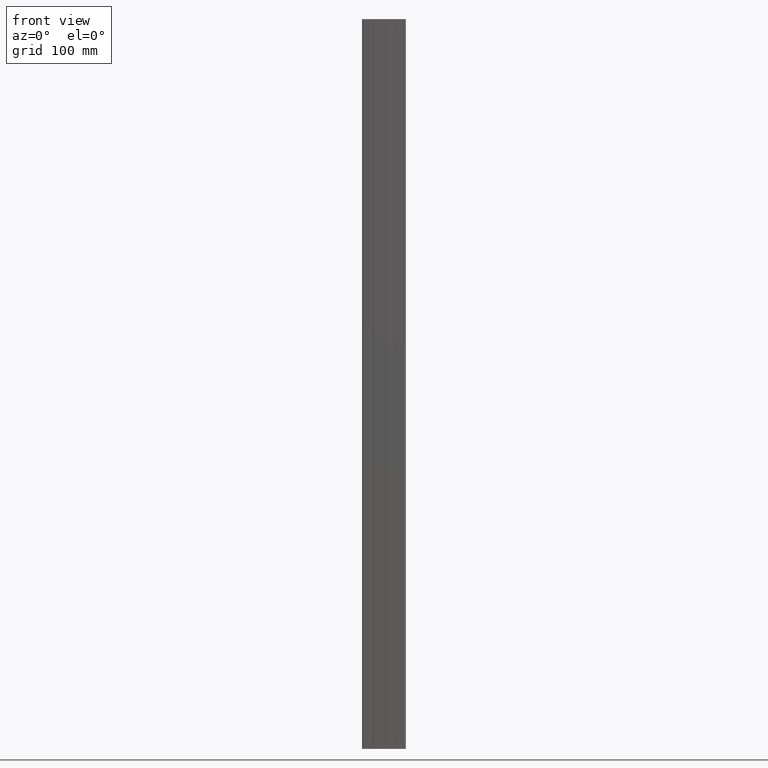
[diagram: clean part render]
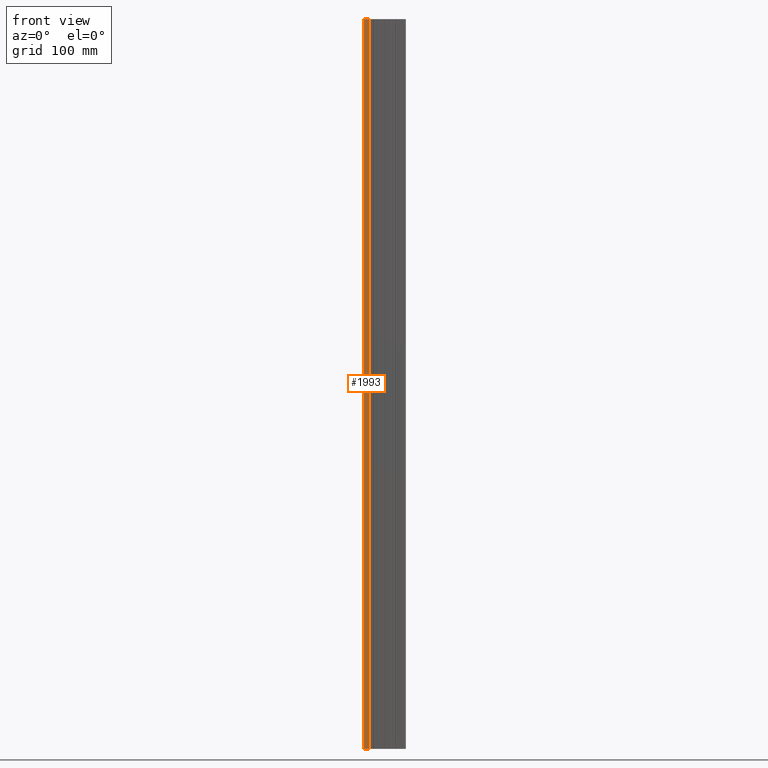
[diagram: same view with one face highlighted and labeled with its STEP entity id]
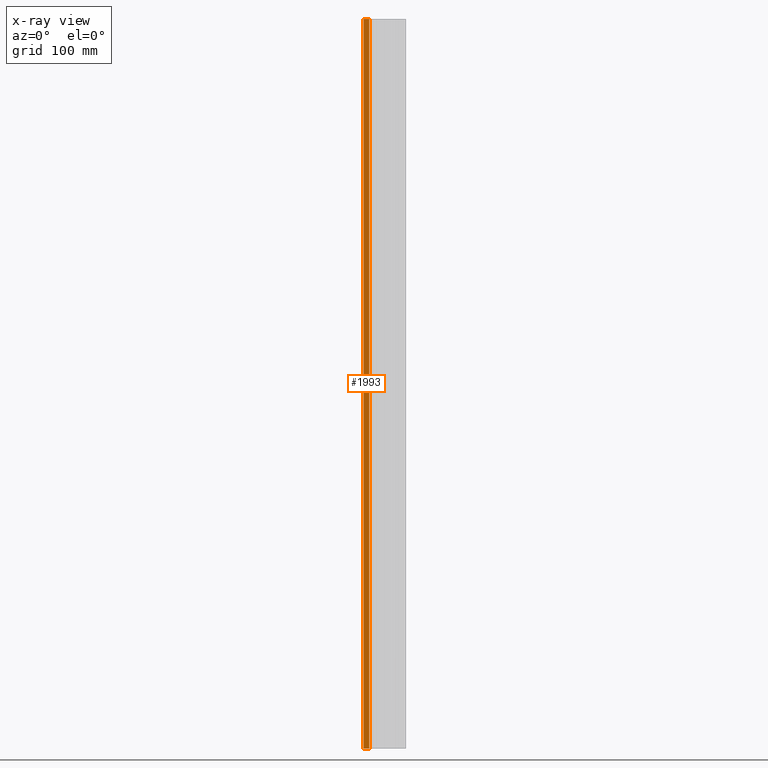
[diagram: x-ray of the same camera — body ghosted, the highlighted face saturated]
A machine part, front view. The second image highlights one B-rep face of the part: STEP entity #1993.
The next image is the same camera in x-ray: the body ghosted, the highlighted face saturated — about 0% of this face is hidden behind the body in this view.
In plain terms, the highlighted planar face has unit normal (-0, -1, 0).
Its self-contained STEP definition (entity closure, byte-faithful):
#407 = VECTOR ( 'NONE', #6613, 1000.000000000000000 ) ;
#1286 = LINE ( 'NONE', #7169, #4335 ) ;
#1383 = DIRECTION ( 'NONE',  ( -1.000000000000000000, 1.591489427501658389E-16, 0.0000000000000000000 ) ) ;
#1701 = CARTESIAN_POINT ( 'NONE',  ( -12.99999999999997335, -15.00000000000000000, 0.0000000000000000000 ) ) ;
#1993 = ADVANCED_FACE ( 'NONE', ( #2745 ), #7260, .T. ) ;
#2593 = VECTOR ( 'NONE', #3439, 1000.000000000000000 ) ;
#2607 = CARTESIAN_POINT ( 'NONE',  ( -5.150000000000001243, -15.00000000000000178, -1000.000000000000000 ) ) ;
#2745 = FACE_OUTER_BOUND ( 'NONE', #5709, .T. ) ;
#2923 = ORIENTED_EDGE ( 'NONE', *, *, #5161, .F. ) ;
#3439 = DIRECTION ( 'NONE',  ( -0.0000000000000000000, -0.0000000000000000000, -1.000000000000000000 ) ) ;
#3529 = DIRECTION ( 'NONE',  ( -1.000000000000000000, 1.591489427501658389E-16, -0.0000000000000000000 ) ) ;
#3621 = CARTESIAN_POINT ( 'NONE',  ( -14.99999999999998579, -15.00000000000000000, -1000.000000000000000 ) ) ;
#3977 = DIRECTION ( 'NONE',  ( 0.0000000000000000000, 0.0000000000000000000, 1.000000000000000000 ) ) ;
#4073 = LINE ( 'NONE', #2607, #2593 ) ;
#4127 = CARTESIAN_POINT ( 'NONE',  ( -5.150000000000002132, -15.00000000000000178, 0.0000000000000000000 ) ) ;
#4335 = VECTOR ( 'NONE', #3529, 1000.000000000000000 ) ;
#4623 = LINE ( 'NONE', #6835, #5880 ) ;
#5161 = EDGE_CURVE ( 'NONE', #6293, #7606, #4623, .T. ) ;
#5257 = EDGE_CURVE ( 'NONE', #8541, #7321, #4073, .T. ) ;
#5709 = EDGE_LOOP ( 'NONE', ( #8840, #8678, #7194, #2923 ) ) ;
#5880 = VECTOR ( 'NONE', #3977, 1000.000000000000000 ) ;
#6098 = CARTESIAN_POINT ( 'NONE',  ( -12.99999999999997335, -15.00000000000000000, -1000.000000000000000 ) ) ;
#6293 = VERTEX_POINT ( 'NONE', #6098 ) ;
#6575 = CARTESIAN_POINT ( 'NONE',  ( -14.99999999999998579, -15.00000000000000000, -1000.000000000000000 ) ) ;
#6613 = DIRECTION ( 'NONE',  ( -1.000000000000000000, 1.591489427501658389E-16, -0.0000000000000000000 ) ) ;
#6835 = CARTESIAN_POINT ( 'NONE',  ( -12.99999999999997335, -15.00000000000000000, -1000.000000000000000 ) ) ;
#7056 = CARTESIAN_POINT ( 'NONE',  ( -5.150000000000002132, -15.00000000000000178, -1000.000000000000000 ) ) ;
#7058 = EDGE_CURVE ( 'NONE', #7321, #6293, #8823, .T. ) ;
#7169 = CARTESIAN_POINT ( 'NONE',  ( -14.99999999999998579, -15.00000000000000000, 0.0000000000000000000 ) ) ;
#7194 = ORIENTED_EDGE ( 'NONE', *, *, #9102, .T. ) ;
#7260 = PLANE ( 'NONE',  #8981 ) ;
#7321 = VERTEX_POINT ( 'NONE', #7056 ) ;
#7606 = VERTEX_POINT ( 'NONE', #1701 ) ;
#8541 = VERTEX_POINT ( 'NONE', #4127 ) ;
#8678 = ORIENTED_EDGE ( 'NONE', *, *, #5257, .F. ) ;
#8823 = LINE ( 'NONE', #3621, #407 ) ;
#8833 = DIRECTION ( 'NONE',  ( -1.591489427501658389E-16, -1.000000000000000000, 0.0000000000000000000 ) ) ;
#8840 = ORIENTED_EDGE ( 'NONE', *, *, #7058, .F. ) ;
#8981 = AXIS2_PLACEMENT_3D ( 'NONE', #6575, #8833, #1383 ) ;
#9102 = EDGE_CURVE ( 'NONE', #8541, #7606, #1286, .T. ) ;